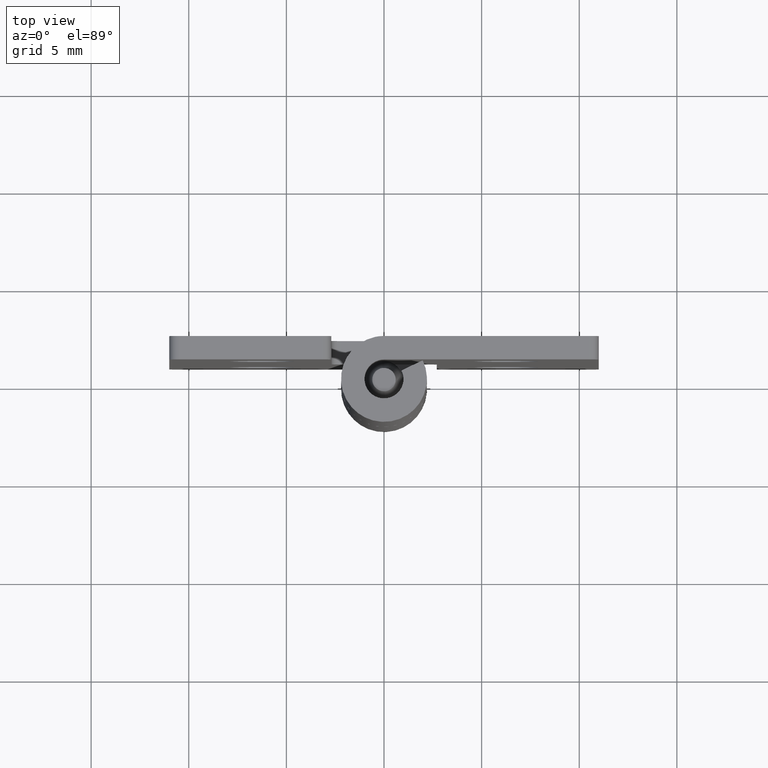
[diagram: clean part render]
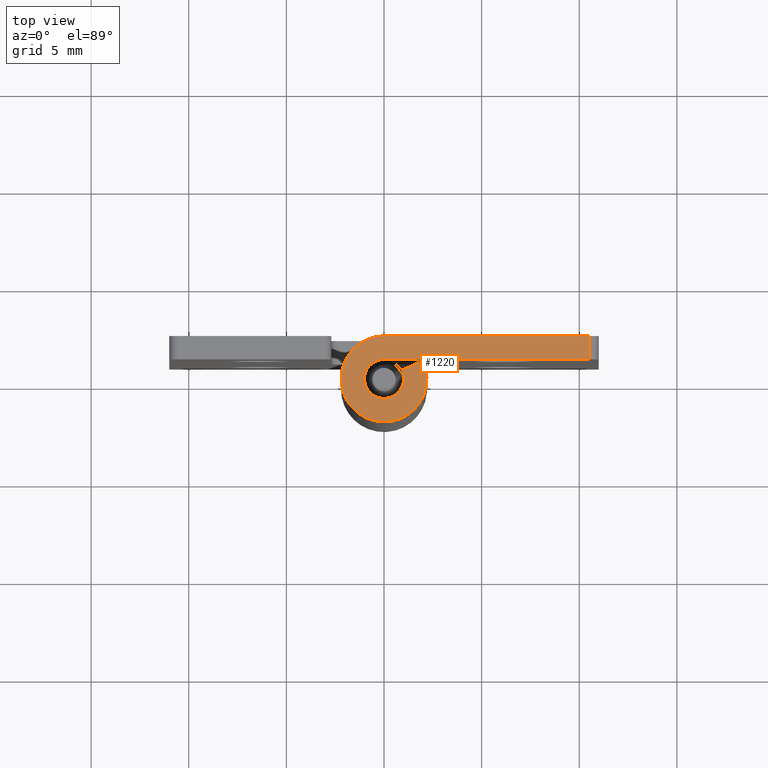
[diagram: same view with one face highlighted and labeled with its STEP entity id]
A machine part, top view. The second image highlights one B-rep face of the part: STEP entity #1220.
In plain terms, the highlighted face is a freeform B-spline surface patch.
Its self-contained STEP definition (entity closure, byte-faithful):
#992=CARTESIAN_POINT('',(10.500000000000000,1.0,30.0));
#993=VERTEX_POINT('',#992);
#1014=CARTESIAN_POINT('',(10.500000000000000,2.200001000000000,30.0));
#1015=VERTEX_POINT('',#1014);
#1029=CARTESIAN_POINT('',(10.500000000000000,2.200001000000000,30.0));
#1030=CARTESIAN_POINT('',(10.500000000000000,1.0,30.0));
#1031=QUASI_UNIFORM_CURVE('',1,(#1029,#1030),.UNSPECIFIED.,.F.,.U.);
#1032=EDGE_CURVE('',#1015,#993,#1031,.T.);
#1151=CARTESIAN_POINT('',(-2.833748043917603,-2.417310352967681,30.0));
#1152=CARTESIAN_POINT('',(11.134335966301970,-2.417310352967681,30.0));
#1153=CARTESIAN_POINT('',(-2.833748043917603,2.419663667177656,30.0));
#1154=CARTESIAN_POINT('',(11.134335966301970,2.419663667177656,30.0));
#1155=B_SPLINE_SURFACE_WITH_KNOTS('',1,1,((#1151,#1153),(#1152,#1154)),.UNSPECIFIED.,.F.,.F.,.U.,(2,2),(2,2),(0.0,13.968084010219570),(0.0,4.836974020145336),.UNSPECIFIED.);
#1156=CARTESIAN_POINT('',(0.0,1.0,30.0));
#1157=VERTEX_POINT('',#1156);
#1158=CARTESIAN_POINT('',(0.0,1.0,30.0));
#1159=CARTESIAN_POINT('',(10.500000000000000,1.0,30.0));
#1160=QUASI_UNIFORM_CURVE('',1,(#1158,#1159),.UNSPECIFIED.,.F.,.U.);
#1161=EDGE_CURVE('',#1157,#993,#1160,.T.);
#1162=ORIENTED_EDGE('',*,*,#1161,.T.);
#1163=ORIENTED_EDGE('',*,*,#1032,.F.);
#1164=CARTESIAN_POINT('',(0.0,2.200001000000000,30.0));
#1165=VERTEX_POINT('',#1164);
#1166=CARTESIAN_POINT('',(10.500000000000000,2.200001000000000,30.0));
#1167=CARTESIAN_POINT('',(0.0,2.200001000000000,30.0));
#1168=QUASI_UNIFORM_CURVE('',1,(#1166,#1167),.UNSPECIFIED.,.F.,.U.);
#1169=EDGE_CURVE('',#1015,#1165,#1168,.T.);
#1170=ORIENTED_EDGE('',*,*,#1169,.T.);
#1171=CARTESIAN_POINT('',(1.984314385259115,0.950000431818184,30.0));
#1172=VERTEX_POINT('',#1171);
#1173=CARTESIAN_POINT('',(1.984314385259116,0.950000431818184,30.0));
#1174=CARTESIAN_POINT('',(2.698836959186664,-0.542459334040276,30.0));
#1175=CARTESIAN_POINT('',(1.463141923783001,-1.642930342671161,30.0));
#1176=CARTESIAN_POINT('',(0.227446888379338,-2.743401351302047,30.0));
#1177=CARTESIAN_POINT('',(-1.172604472957645,-1.861451893012743,30.0));
#1178=CARTESIAN_POINT('',(-2.572655834294632,-0.979502434723438,30.0));
#1179=CARTESIAN_POINT('',(-2.113669844852895,0.610249282638282,30.0));
#1180=CARTESIAN_POINT('',(-1.654683855411160,2.200001000000000,30.0));
#1181=CARTESIAN_POINT('',(0.0,2.200001000000000,30.0));
#1189=(BOUNDED_CURVE()B_SPLINE_CURVE(2,(#1173,#1174,#1175,#1176,#1177,#1178,#1179,#1180,#1181),.UNSPECIFIED.,.F.,.U.)B_SPLINE_CURVE_WITH_KNOTS((3,2,2,2,3),(0.0,0.250000000000000,0.500000000000000,0.750000000000000,1.0),.UNSPECIFIED.)CURVE()GEOMETRIC_REPRESENTATION_ITEM()RATIONAL_B_SPLINE_CURVE((1.0,0.799182679829321,1.0,0.799182679829321,1.0,0.799182679829321,1.0,0.799182679829321,1.0))REPRESENTATION_ITEM(''));
#1190=EDGE_CURVE('',#1172,#1165,#1189,.T.);
#1191=ORIENTED_EDGE('',*,*,#1190,.F.);
#1192=CARTESIAN_POINT('',(0.901960674226564,0.431818181818183,30.0));
#1193=VERTEX_POINT('',#1192);
#1194=CARTESIAN_POINT('',(1.984314385259115,0.950000431818184,30.0));
#1195=CARTESIAN_POINT('',(0.901960674226564,0.431818181818183,30.0));
#1196=QUASI_UNIFORM_CURVE('',1,(#1194,#1195),.UNSPECIFIED.,.F.,.U.);
#1197=EDGE_CURVE('',#1172,#1193,#1196,.T.);
#1198=ORIENTED_EDGE('',*,*,#1197,.T.);
#1199=CARTESIAN_POINT('',(0.901960674226564,0.431818181818184,30.0));
#1200=CARTESIAN_POINT('',(1.226743514746886,-0.246572312485437,30.000000000000004));
#1201=CARTESIAN_POINT('',(0.665064208508542,-0.746786179947719,30.0));
#1202=CARTESIAN_POINT('',(0.103384902270198,-1.247000047410000,30.000000000000004));
#1203=CARTESIAN_POINT('',(-0.533001790889025,-0.846114112226650,30.0));
#1204=CARTESIAN_POINT('',(-1.169388484048249,-0.445228177043300,30.000000000000004));
#1205=CARTESIAN_POINT('',(-0.960758583679233,0.277385911478350,30.0));
#1206=CARTESIAN_POINT('',(-0.752128683310216,1.0,30.000000000000004));
#1207=CARTESIAN_POINT('',(0.0,1.0,30.0));
#1215=(BOUNDED_CURVE()B_SPLINE_CURVE(2,(#1199,#1200,#1201,#1202,#1203,#1204,#1205,#1206,#1207),.UNSPECIFIED.,.F.,.U.)B_SPLINE_CURVE_WITH_KNOTS((3,2,2,2,3),(0.0,0.250000000000000,0.500000000000000,0.750000000000000,1.0),.UNSPECIFIED.)CURVE()GEOMETRIC_REPRESENTATION_ITEM()RATIONAL_B_SPLINE_CURVE((1.0,0.799182679829321,1.0,0.799182679829321,1.0,0.799182679829321,1.0,0.799182679829321,1.0))REPRESENTATION_ITEM(''));
#1216=EDGE_CURVE('',#1193,#1157,#1215,.T.);
#1217=ORIENTED_EDGE('',*,*,#1216,.T.);
#1218=EDGE_LOOP('',(#1162,#1163,#1170,#1191,#1198,#1217));
#1219=FACE_OUTER_BOUND('',#1218,.T.);
#1220=ADVANCED_FACE('',(#1219),#1155,.T.);